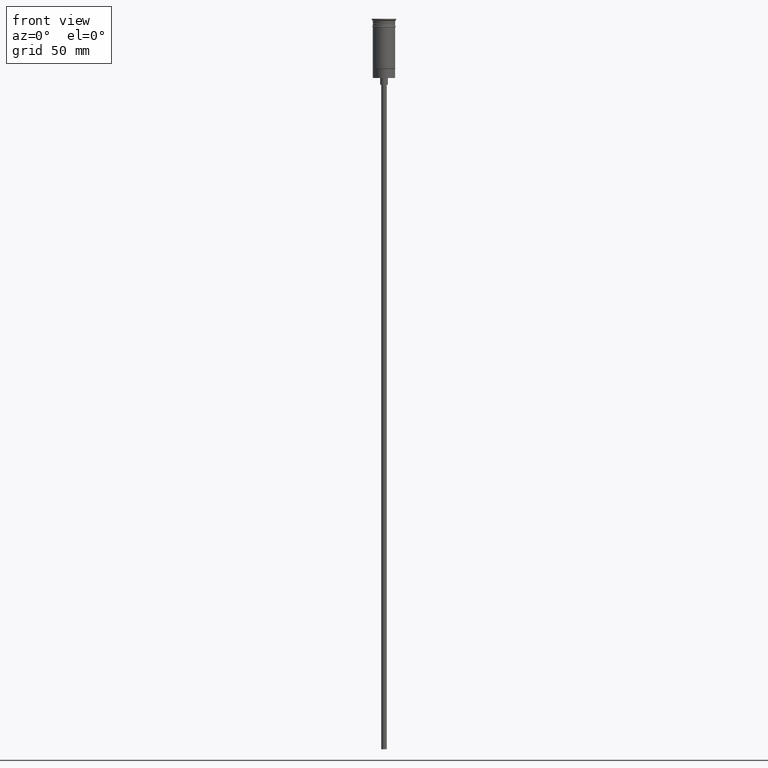
[diagram: clean part render]
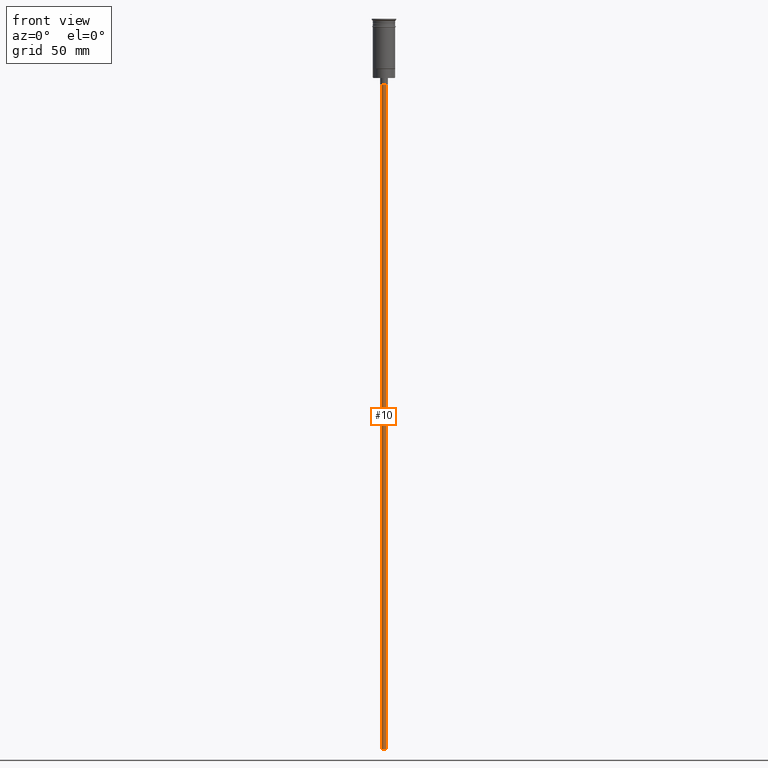
[diagram: same view with one face highlighted and labeled with its STEP entity id]
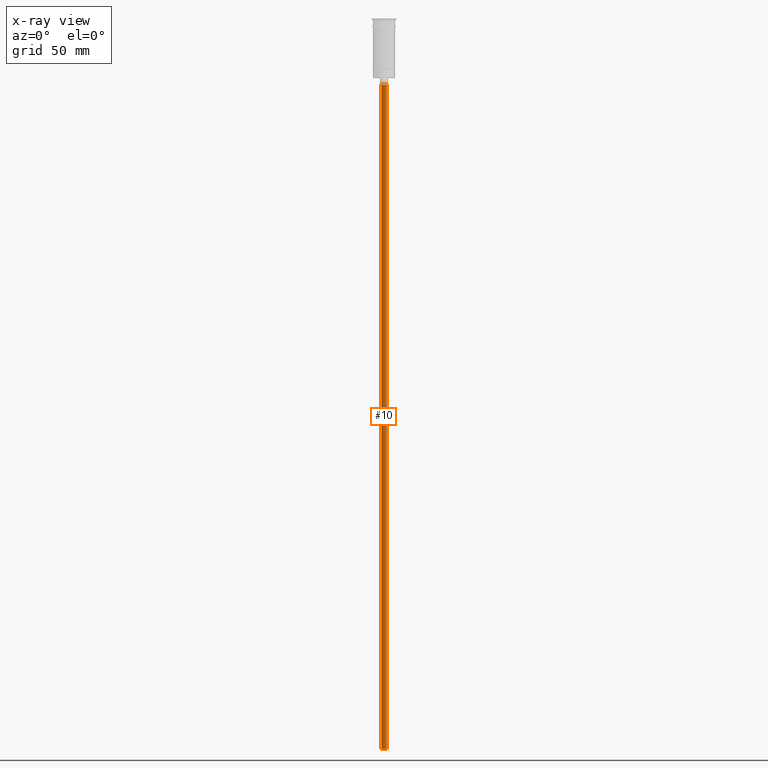
[diagram: x-ray of the same camera — body ghosted, the highlighted face saturated]
A machine part, front view. The second image highlights one B-rep face of the part: STEP entity #10.
The next image is the same camera in x-ray: the body ghosted, the highlighted face saturated — about 0% of this face is hidden behind the body in this view.
In plain terms, the highlighted cylindrical surface (edge-blend (fillet) strip) has radius 1.25 mm, axis along (-0, -0, 1).
Its self-contained STEP definition (entity closure, byte-faithful):
#10 = ADVANCED_FACE ( 'NONE', ( #929 ), #192, .T. ) ;
#72 = CARTESIAN_POINT ( 'NONE',  ( 0.000000000000000000, 0.000000000000000000, -326.5000000000000000 ) ) ;
#83 = EDGE_LOOP ( 'NONE', ( #1352, #268, #167, #938 ) ) ;
#161 = EDGE_CURVE ( 'NONE', #429, #1054, #1072, .T. ) ;
#167 = ORIENTED_EDGE ( 'NONE', *, *, #161, .T. ) ;
#170 = EDGE_CURVE ( 'NONE', #429, #923, #1432, .T. ) ;
#189 = CARTESIAN_POINT ( 'NONE',  ( 1.250000000000000000, 0.000000000000000000, -29.50000000000000000 ) ) ;
#192 = CYLINDRICAL_SURFACE ( 'NONE', #1575, 1.250000000000000000 ) ;
#228 = DIRECTION ( 'NONE',  ( -0.000000000000000000, -0.000000000000000000, 1.000000000000000000 ) ) ;
#268 = ORIENTED_EDGE ( 'NONE', *, *, #170, .F. ) ;
#302 = CARTESIAN_POINT ( 'NONE',  ( 0.000000000000000000, 0.000000000000000000, -29.50000000000000000 ) ) ;
#429 = VERTEX_POINT ( 'NONE', #1351 ) ;
#444 = CARTESIAN_POINT ( 'NONE',  ( -1.250000000000000000, 1.530808498934191571E-16, -326.5000000000000000 ) ) ;
#597 = VECTOR ( 'NONE', #228, 1000.000000000000000 ) ;
#628 = CARTESIAN_POINT ( 'NONE',  ( -1.250000000000000000, 1.530808498934191571E-16, -29.50000000000000000 ) ) ;
#688 = DIRECTION ( 'NONE',  ( -1.000000000000000000, 0.000000000000000000, 0.000000000000000000 ) ) ;
#723 = AXIS2_PLACEMENT_3D ( 'NONE', #1169, #1438, #688 ) ;
#820 = VERTEX_POINT ( 'NONE', #628 ) ;
#911 = CARTESIAN_POINT ( 'NONE',  ( -1.250000000000000000, 1.530808498934191571E-16, -326.5000000000000000 ) ) ;
#923 = VERTEX_POINT ( 'NONE', #911 ) ;
#929 = FACE_OUTER_BOUND ( 'NONE', #83, .T. ) ;
#937 = DIRECTION ( 'NONE',  ( -0.000000000000000000, -0.000000000000000000, 1.000000000000000000 ) ) ;
#938 = ORIENTED_EDGE ( 'NONE', *, *, #1532, .T. ) ;
#952 = CARTESIAN_POINT ( 'NONE',  ( 1.250000000000000000, 0.000000000000000000, -326.5000000000000000 ) ) ;
#1038 = EDGE_CURVE ( 'NONE', #923, #820, #1545, .T. ) ;
#1054 = VERTEX_POINT ( 'NONE', #189 ) ;
#1062 = DIRECTION ( 'NONE',  ( -0.000000000000000000, -0.000000000000000000, 1.000000000000000000 ) ) ;
#1072 = LINE ( 'NONE', #952, #597 ) ;
#1169 = CARTESIAN_POINT ( 'NONE',  ( 0.000000000000000000, 0.000000000000000000, -326.5000000000000000 ) ) ;
#1351 = CARTESIAN_POINT ( 'NONE',  ( 1.250000000000000000, 0.000000000000000000, -326.5000000000000000 ) ) ;
#1352 = ORIENTED_EDGE ( 'NONE', *, *, #1038, .F. ) ;
#1432 = CIRCLE ( 'NONE', #723, 1.250000000000000000 ) ;
#1438 = DIRECTION ( 'NONE',  ( 0.000000000000000000, 0.000000000000000000, -1.000000000000000000 ) ) ;
#1463 = AXIS2_PLACEMENT_3D ( 'NONE', #302, #1551, #1544 ) ;
#1483 = VECTOR ( 'NONE', #1062, 1000.000000000000000 ) ;
#1532 = EDGE_CURVE ( 'NONE', #1054, #820, #1558, .T. ) ;
#1544 = DIRECTION ( 'NONE',  ( -1.000000000000000000, 0.000000000000000000, 0.000000000000000000 ) ) ;
#1545 = LINE ( 'NONE', #444, #1483 ) ;
#1551 = DIRECTION ( 'NONE',  ( 0.000000000000000000, 0.000000000000000000, -1.000000000000000000 ) ) ;
#1558 = CIRCLE ( 'NONE', #1463, 1.250000000000000000 ) ;
#1559 = DIRECTION ( 'NONE',  ( 1.000000000000000000, 0.000000000000000000, 0.000000000000000000 ) ) ;
#1575 = AXIS2_PLACEMENT_3D ( 'NONE', #72, #937, #1559 ) ;